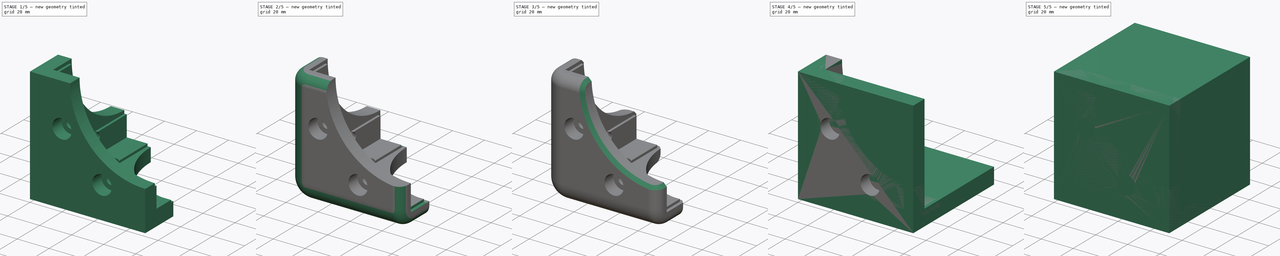
[diagram: build sequence overview — one tinted view per stage of 5, left to right]
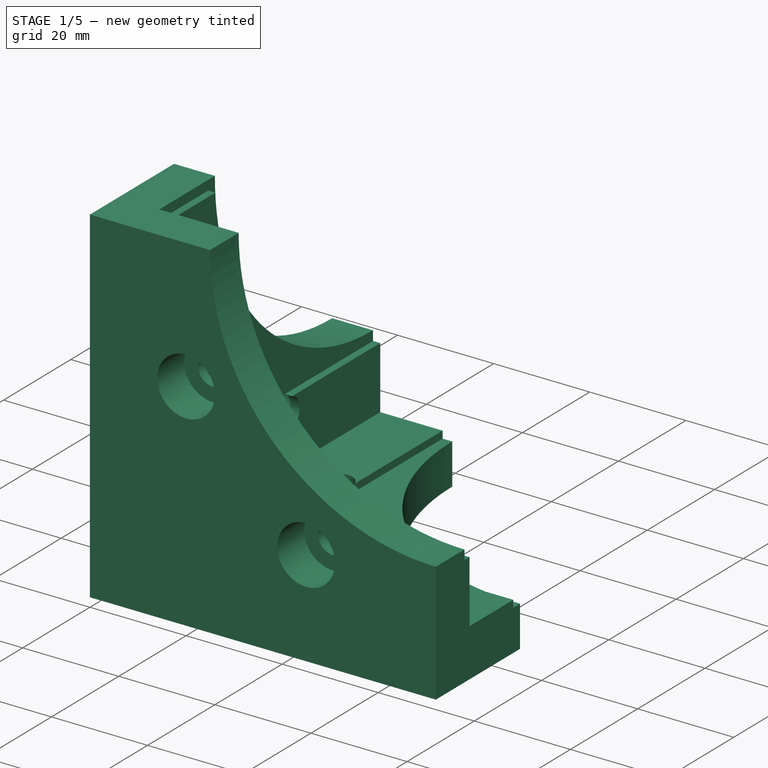
[diagram: stage 1 of 5 — iso view after this stage's code; geometry added in this stage tinted green]
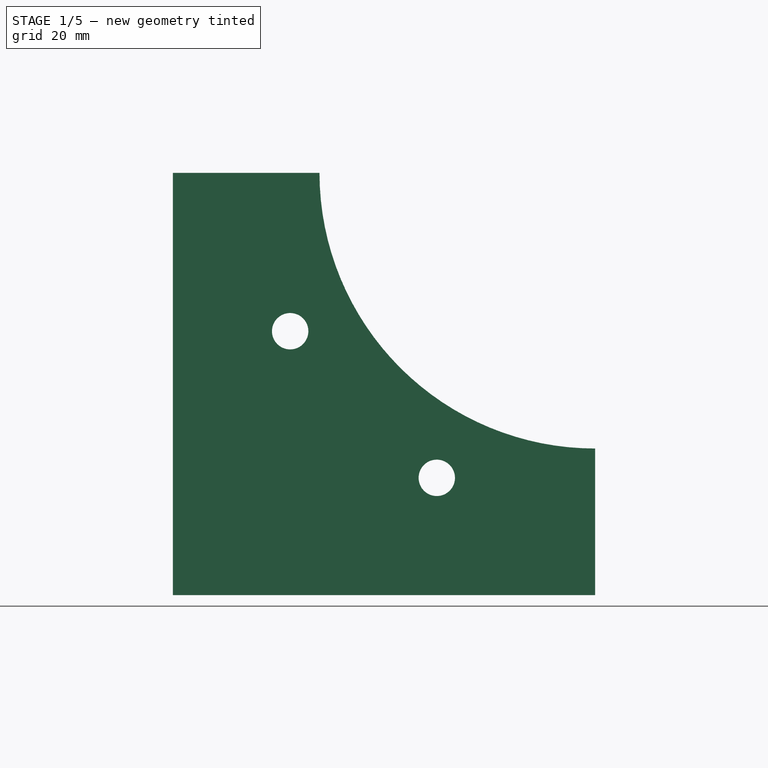
[diagram: stage 1 of 5 — front view after this stage's code; geometry added in this stage tinted green]
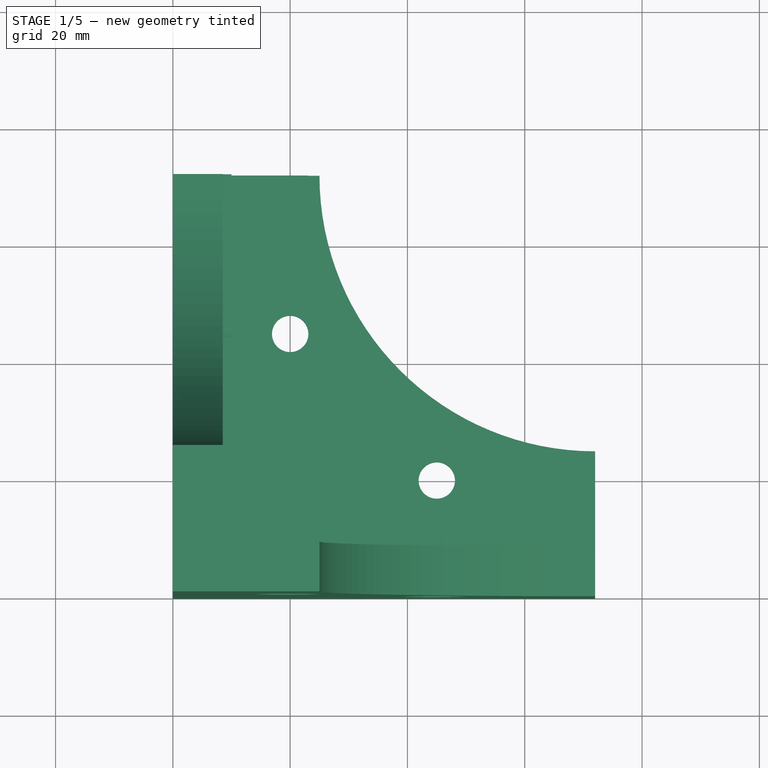
[diagram: stage 1 of 5 — top view after this stage's code; geometry added in this stage tinted green]
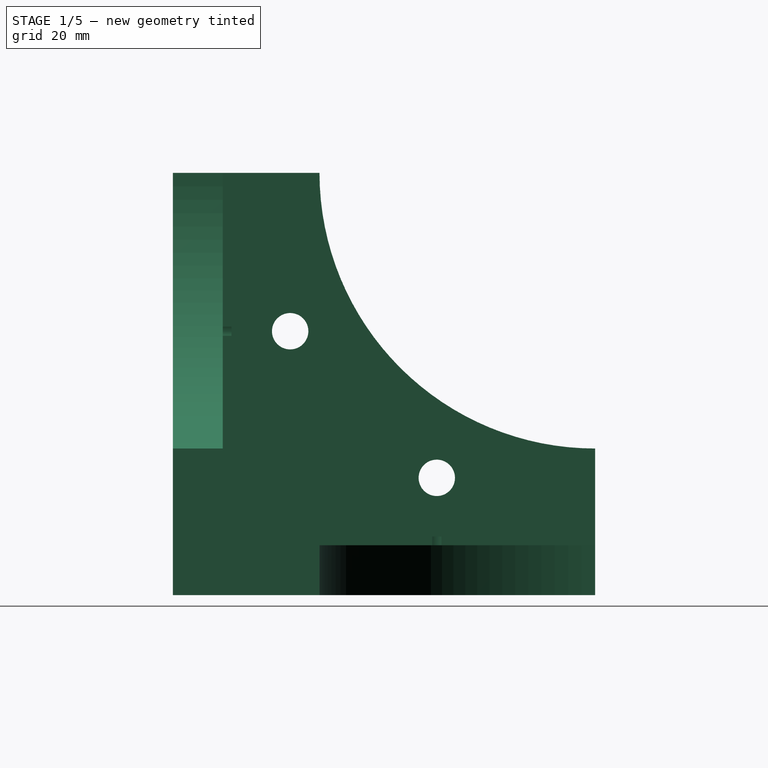
[diagram: stage 1 of 5 — right view after this stage's code; geometry added in this stage tinted green]
FCSTD DOCUMENT  (FreeCAD 0.17R9796 (Git))
Label: shell_3dcorner8g
License: CC-BY 3.0
LicenseURL: http://creativecommons.org/licenses/by/3.0/
objects: Sketcher::SketchObject×16, PartDesign::Pocket×16, PartDesign::Fillet×4, PartDesign::Chamfer×3, Part::Box×1
note: 56 computed .brp shape members not serialized (recipe doc carries the construction recipe); baked Part::Feature solids carry a one-line shape summary decoded from their .brp

FEATURE [Sketcher::SketchObject] Sketch009
  MapMode = 5
  Placement = pos=(0,0,0) rot=(1,0,0;3.14159rad)
  sketch-geometry (1):
    g0: Circle CenterX=72 CenterY=-72 CenterZ=0 NormalX=0 NormalY=0 NormalZ=1 Radius=47
  constraints (3):
    c: DistanceY(g-1,g0) = -72
    c: DistanceX(g-1,g0) = 72
    c: Radius(g0) = 47
FEATURE [PartDesign::Pocket] Pocket009
  Length = 10
  Type = 0
FEATURE [Sketcher::SketchObject] Sketch010
  MapMode = 5
  Placement = pos=(0,10,0) rot=(0,0.707107,0.707107;3.14159rad)
  Support = -> [Pocket009]
  sketch-geometry (4):
    g0: LineSegment StartX=-72 StartY=72 StartZ=0 EndX=-23 EndY=72 EndZ=0
    g1: LineSegment StartX=-23 StartY=72 StartZ=0 EndX=-23 EndY=23 EndZ=0
    g2: LineSegment StartX=-23 StartY=23 StartZ=0 EndX=-72 EndY=23 EndZ=0
    g3: LineSegment StartX=-72 StartY=23 StartZ=0 EndX=-72 EndY=72 EndZ=0
  constraints (12):
    c: Coincident(g0,g1)
    c: Coincident(g1,g2)
    c: Coincident(g2,g3)
    c: Coincident(g3,g0)
    c: Horizontal(g0)
    c: Horizontal(g2)
    c: Vertical(g1)
    c: Vertical(g3)
    c: DistanceY(g-1,g0) = 72
    c: DistanceX(g-1,g0) = -72
    c: DistanceX(g-1,g1) = -23
    c: DistanceY(g-1,g1) = 23
FEATURE [PartDesign::Pocket] Pocket010
  Length = 3
  Midplane = true
  Profile = -> Sketch010
  Type = 0
FEATURE [Sketcher::SketchObject] Sketch011
  MapMode = 5
  Placement = pos=(0,0,72) rot=(0,0,1;0rad)
  Support = -> [Pocket010]
  sketch-geometry (6):
    g0: LineSegment StartX=8.5 StartY=25 StartZ=0 EndX=10 EndY=25 EndZ=0
    g1: LineSegment StartX=10 StartY=25 StartZ=0 EndX=10 EndY=10 EndZ=0
    g2: LineSegment StartX=10 StartY=10 StartZ=0 EndX=25 EndY=10 EndZ=0
    g3: LineSegment StartX=25 StartY=10 StartZ=0 EndX=25 EndY=8.5 EndZ=0
    g4: LineSegment StartX=25 StartY=8.5 StartZ=0 EndX=8.5 EndY=8.5 EndZ=0
    g5: LineSegment StartX=8.5 StartY=8.5 StartZ=0 EndX=8.5 EndY=25 EndZ=0
  constraints (18):
    c: Coincident(g0,g1)
    c: Coincident(g1,g2)
    c: Coincident(g2,g3)
    c: Coincident(g3,g4)
    c: Coincident(g4,g5)
    c: Coincident(g5,g0)
    c: DistanceY(g-1,g1) = 10
    c: DistanceX(g-1,g1) = 10
    c: DistanceX(g-1,g0) = 10
    c: DistanceY(g-1,g2) = 10
    c: DistanceX(g-1,g2) = 25
    c: DistanceX(g-1,g3) = 25
    c: DistanceY(g-1,g0) = 25
    c: DistanceY(g-1,g0) = 25
    c: DistanceY(g-1,g4) = 8.5
    c: DistanceY(g-1,g3) = 8.5
    c: DistanceX(g-1,g4) = 8.5
    c: DistanceX(g-1,g0) = 8.5
FEATURE [PartDesign::Pocket] Pocket011
  Length = 2
  Profile = -> Sketch011
  Type = 0
FEATURE [Sketcher::SketchObject] Sketch012
  MapMode = 5
  Placement = pos=(0,0,10) rot=(0,0,1;0rad)
  Support = -> [Pocket011]
  sketch-geometry (4):
    g0: LineSegment StartX=23 StartY=72 StartZ=0 EndX=72 EndY=72 EndZ=0
    g1: LineSegment StartX=72 StartY=72 StartZ=0 EndX=72 EndY=23 EndZ=0
    g2: LineSegment StartX=72 StartY=23 StartZ=0 EndX=23 EndY=23 EndZ=0
    g3: LineSegment StartX=23 StartY=23 StartZ=0 EndX=23 EndY=72 EndZ=0
  constraints (12):
    c: Coincident(g0,g1)
    c: Coincident(g1,g2)
    c: Coincident(g2,g3)
    c: Coincident(g3,g0)
    c: Horizontal(g0)
    c: Horizontal(g2)
    c: Vertical(g1)
    c: Vertical(g3)
    c: DistanceY(g-1,g2) = 23
    c: DistanceX(g-1,g2) = 23
    c: DistanceY(g-1,g0) = 72
    c: DistanceX(g-1,g0) = 72
FEATURE [PartDesign::Pocket] Pocket012
  Length = 1.5
  Profile = -> Sketch012
  Type = 0
FEATURE [Sketcher::SketchObject] Sketch013
  MapMode = 5
  Placement = pos=(10,0,0) rot=(0.57735,0.57735,0.57735;2.0944rad)
  Support = -> [Pocket012]
  sketch-geometry (4):
    g0: LineSegment StartX=23 StartY=72 StartZ=0 EndX=72 EndY=72 EndZ=0
    g1: LineSegment StartX=72 StartY=72 StartZ=0 EndX=72 EndY=23 EndZ=0
    g2: LineSegment StartX=72 StartY=23 StartZ=0 EndX=23 EndY=23 EndZ=0
    g3: LineSegment StartX=23 StartY=23 StartZ=0 EndX=23 EndY=72 EndZ=0
  constraints (12):
    c: Coincident(g0,g1)
    c: Coincident(g1,g2)
    c: Coincident(g2,g3)
    c: Coincident(g3,g0)
    c: Horizontal(g0)
    c: Horizontal(g2)
    c: Vertical(g1)
    c: Vertical(g3)
    c: DistanceY(g-1,g2) = 23
    c: DistanceX(g-1,g2) = 23
    c: DistanceY(g-1,g0) = 72
    c: DistanceX(g-1,g0) = 72
FEATURE [PartDesign::Pocket] Pocket013
  Length = 1.5
  Profile = -> Sketch013
  Type = 0
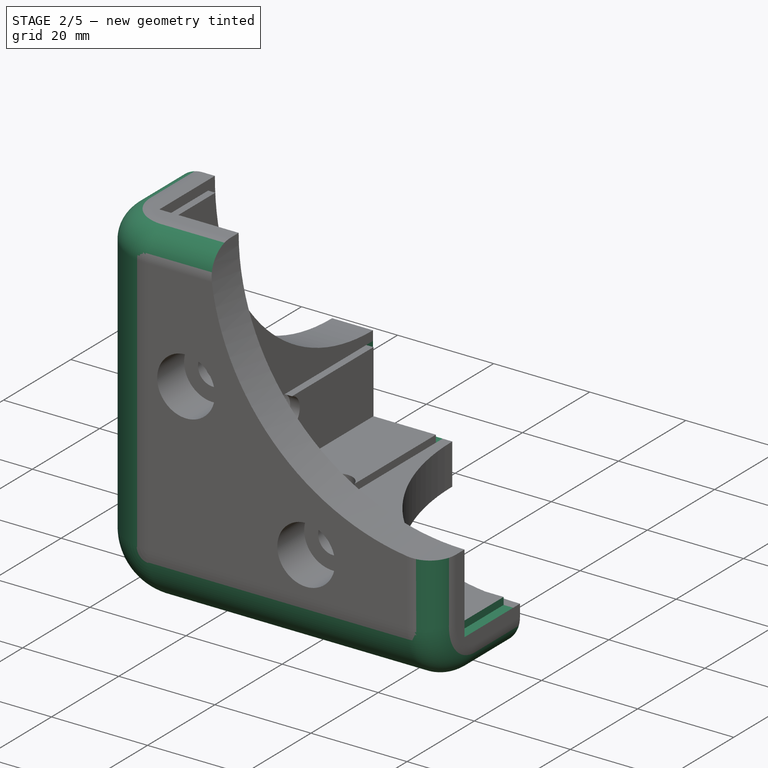
[diagram: stage 2 of 5 — iso view after this stage's code; geometry added in this stage tinted green]
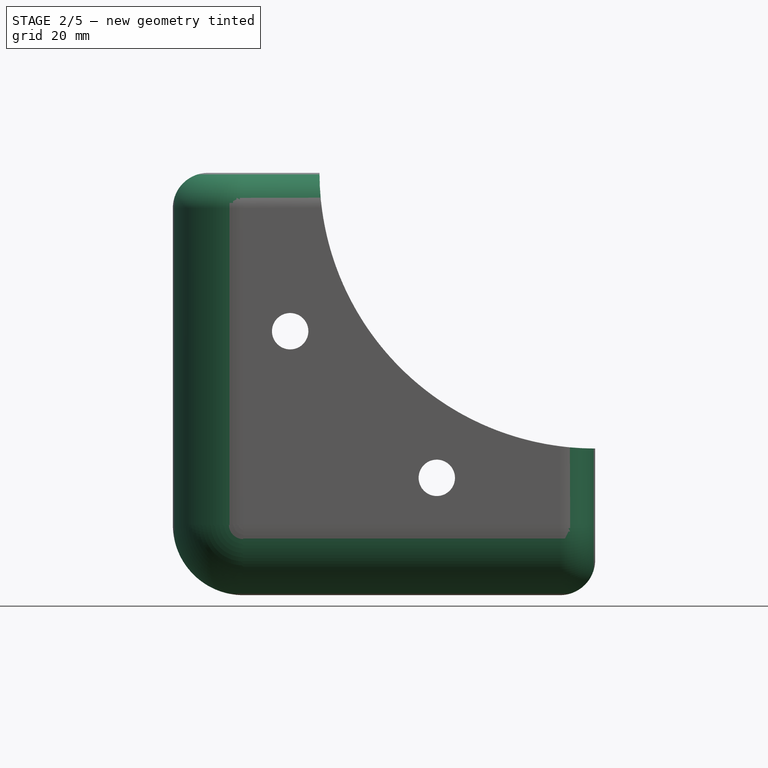
[diagram: stage 2 of 5 — front view after this stage's code; geometry added in this stage tinted green]
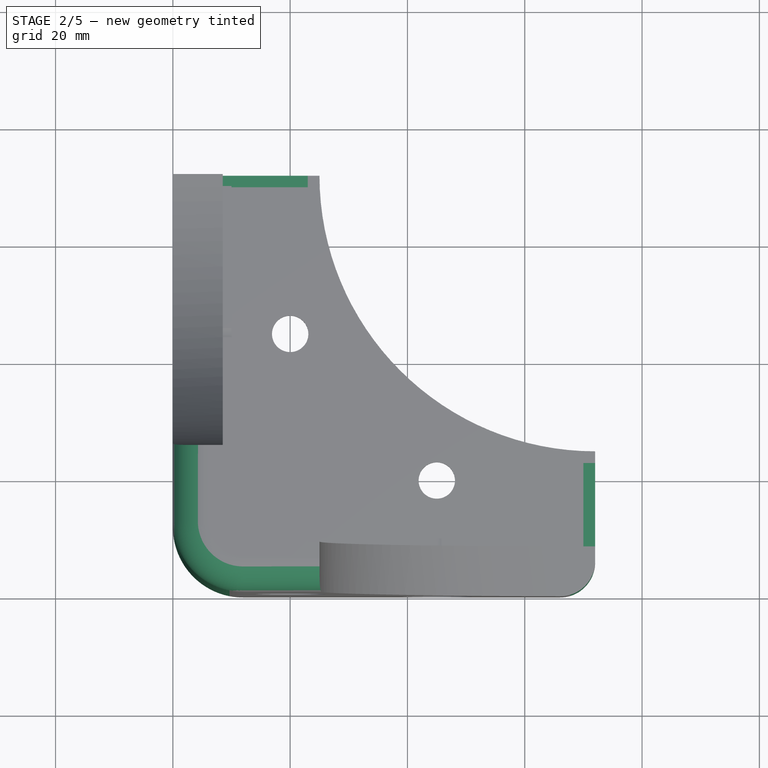
[diagram: stage 2 of 5 — top view after this stage's code; geometry added in this stage tinted green]
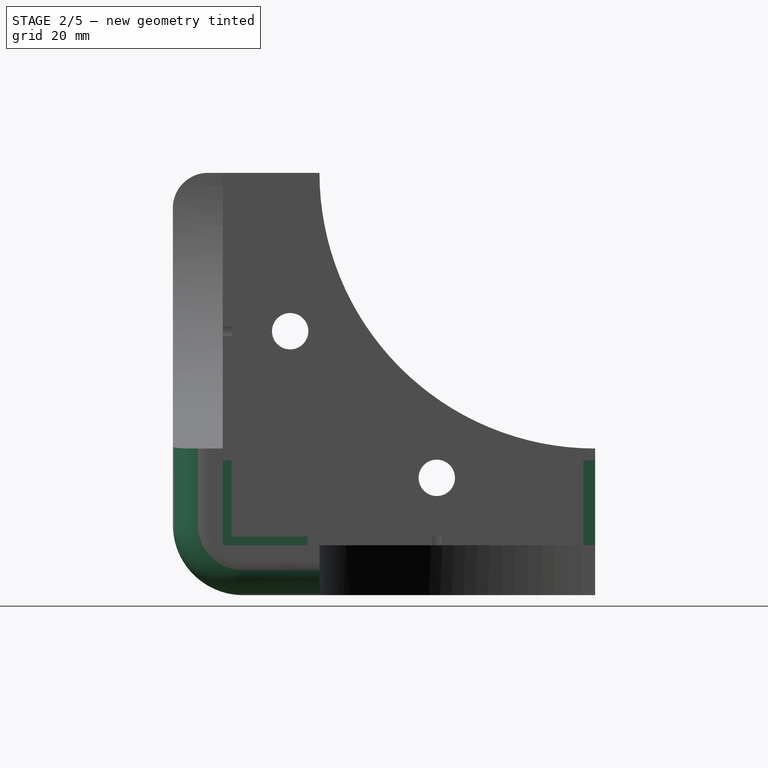
[diagram: stage 2 of 5 — right view after this stage's code; geometry added in this stage tinted green]
FEATURE [Sketcher::SketchObject] Sketch014
  MapMode = 5
  Placement = pos=(72,0,0) rot=(0.57735,0.57735,0.57735;2.0944rad)
  Support = -> [Pocket013]
  sketch-geometry (6):
    g0: LineSegment StartX=8.5 StartY=25 StartZ=0 EndX=10 EndY=25 EndZ=0
    g1: LineSegment StartX=10 StartY=25 StartZ=0 EndX=10 EndY=10 EndZ=0
    g2: LineSegment StartX=10 StartY=10 StartZ=0 EndX=25 EndY=10 EndZ=0
    g3: LineSegment StartX=25 StartY=10 StartZ=0 EndX=25 EndY=8.5 EndZ=0
    g4: LineSegment StartX=25 StartY=8.5 StartZ=0 EndX=8.5 EndY=8.5 EndZ=0
    g5: LineSegment StartX=8.5 StartY=8.5 StartZ=0 EndX=8.5 EndY=25 EndZ=0
  constraints (18):
    c: Coincident(g0,g1)
    c: Coincident(g1,g2)
    c: Coincident(g2,g3)
    c: Coincident(g3,g4)
    c: Coincident(g4,g5)
    c: Coincident(g5,g0)
    c: DistanceY(g-1,g1) = 10
    c: DistanceY(g-1,g2) = 10
    c: DistanceX(g-1,g1) = 10
    c: DistanceX(g-1,g0) = 10
    c: DistanceX(g-1,g0) = 8.5
    c: DistanceX(g-1,g4) = 8.5
    c: DistanceY(g-1,g4) = 8.5
    c: DistanceY(g-1,g3) = 8.5
    c: DistanceX(g-1,g3) = 25
    c: DistanceX(g-1,g2) = 25
    c: DistanceY(g-1,g0) = 25
    c: DistanceY(g-1,g0) = 25
FEATURE [PartDesign::Pocket] Pocket014
  Length = 2
  Profile = -> Sketch014
  Type = 0
FEATURE [Sketcher::SketchObject] Sketch015
  MapMode = 5
  Placement = pos=(0,72,0) rot=(0,0.707107,0.707107;3.14159rad)
  Support = -> [Pocket014]
  sketch-geometry (6):
    g0: LineSegment StartX=-10 StartY=25 StartZ=0 EndX=-8.5 EndY=25 EndZ=0
    g1: LineSegment StartX=-8.5 StartY=25 StartZ=0 EndX=-8.5 EndY=8.5 EndZ=0
    g2: LineSegment StartX=-8.5 StartY=8.5 StartZ=0 EndX=-25 EndY=8.5 EndZ=0
    g3: LineSegment StartX=-25 StartY=8.5 StartZ=0 EndX=-25 EndY=10 EndZ=0
    g4: LineSegment StartX=-25 StartY=10 StartZ=0 EndX=-10 EndY=10 EndZ=0
    g5: LineSegment StartX=-10 StartY=10 StartZ=0 EndX=-10 EndY=25 EndZ=0
  constraints (18):
    c: Coincident(g0,g1)
    c: Coincident(g1,g2)
    c: Coincident(g2,g3)
    c: Coincident(g3,g4)
    c: Coincident(g4,g5)
    c: Coincident(g5,g0)
    c: DistanceY(g-1,g4) = 10
    c: DistanceX(g-1,g4) = -10
    c: DistanceX(g-1,g0) = -10
    c: DistanceY(g-1,g3) = 10
    c: DistanceY(g-1,g1) = 8.5
    c: DistanceX(g-1,g1) = -8.5
    c: DistanceX(g-1,g0) = -8.5
    c: DistanceY(g-1,g2) = 8.5
    c: DistanceY(g-1,g0) = 25
    c: DistanceY(g-1,g0) = 25
    c: DistanceX(g-1,g2) = -25
    c: DistanceX(g-1,g3) = -25
FEATURE [PartDesign::Pocket] Pocket015
  Length = 2
  Profile = -> Sketch015
  Type = 0
FEATURE [PartDesign::Fillet] Fillet
  Base = -> Pocket015 [Edge4,Edge5,Edge25]
  Radius = 12
FEATURE [PartDesign::Fillet] Fillet001
  Base = -> Fillet [Edge75,Edge33,Edge61]
  Radius = 6
FEATURE [PartDesign::Fillet] Fillet002
  Base = -> Fillet001 [Edge5,Edge16,Edge20]
  Radius = 6
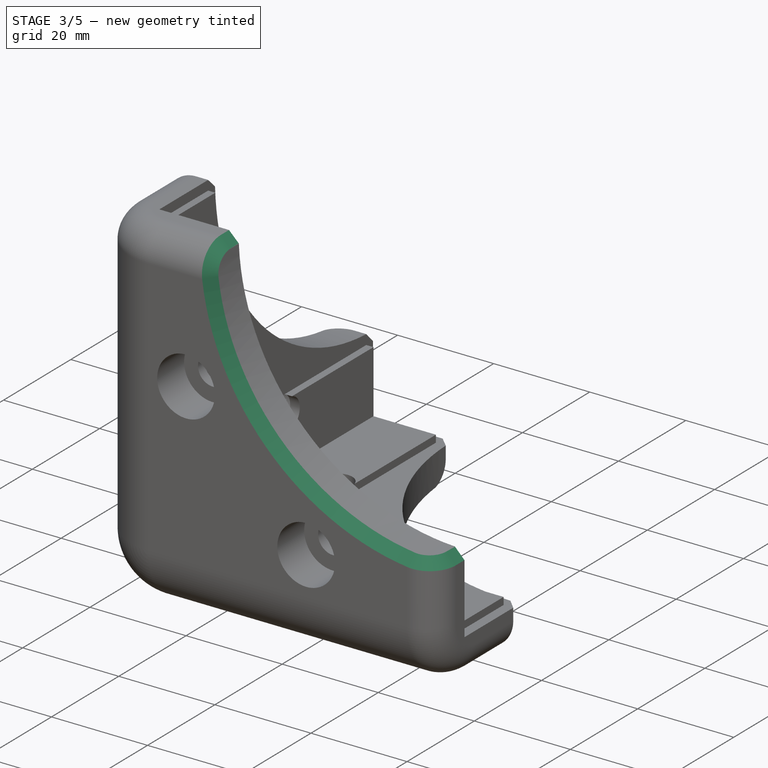
[diagram: stage 3 of 5 — iso view after this stage's code; geometry added in this stage tinted green]
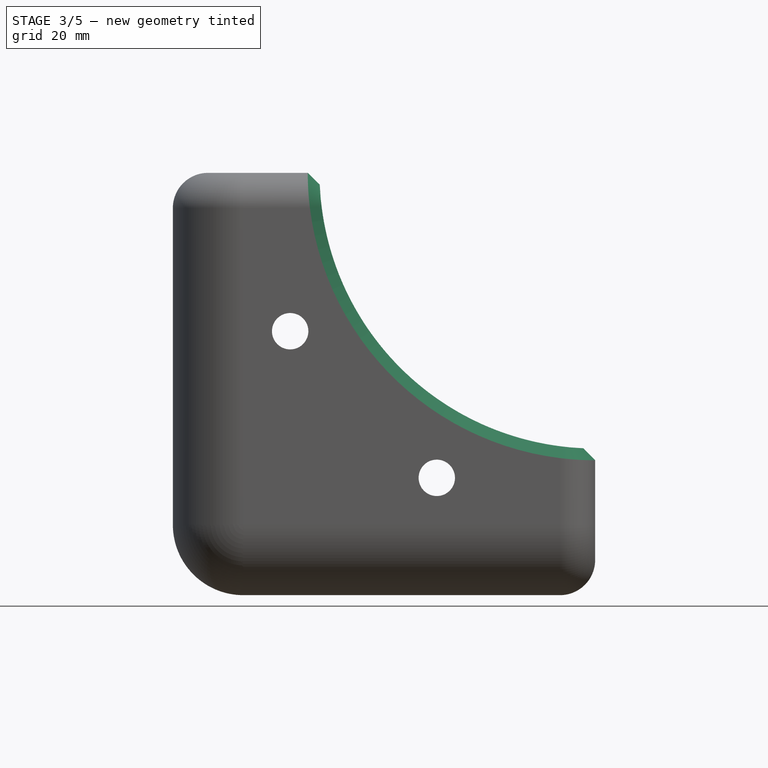
[diagram: stage 3 of 5 — front view after this stage's code; geometry added in this stage tinted green]
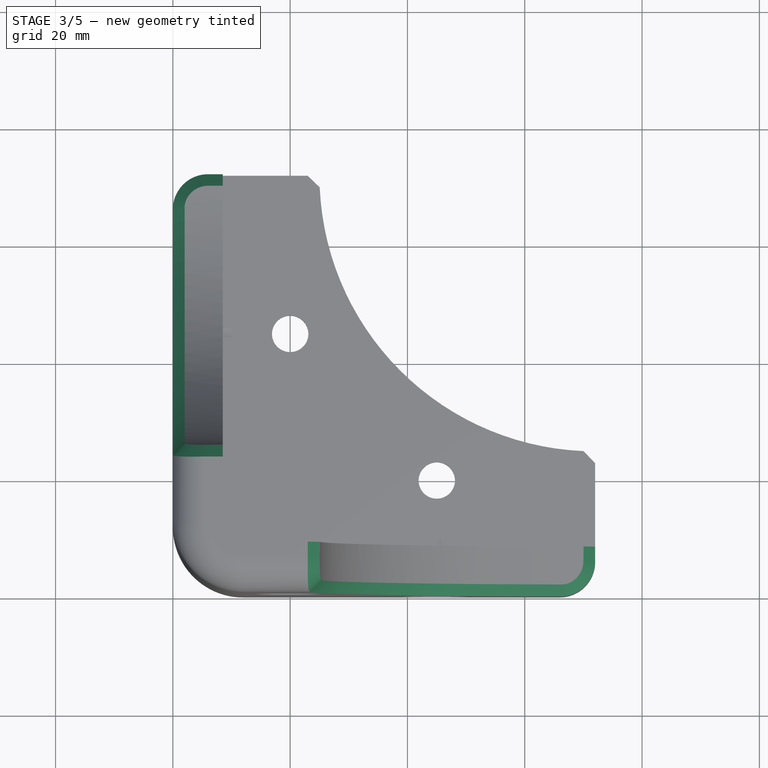
[diagram: stage 3 of 5 — top view after this stage's code; geometry added in this stage tinted green]
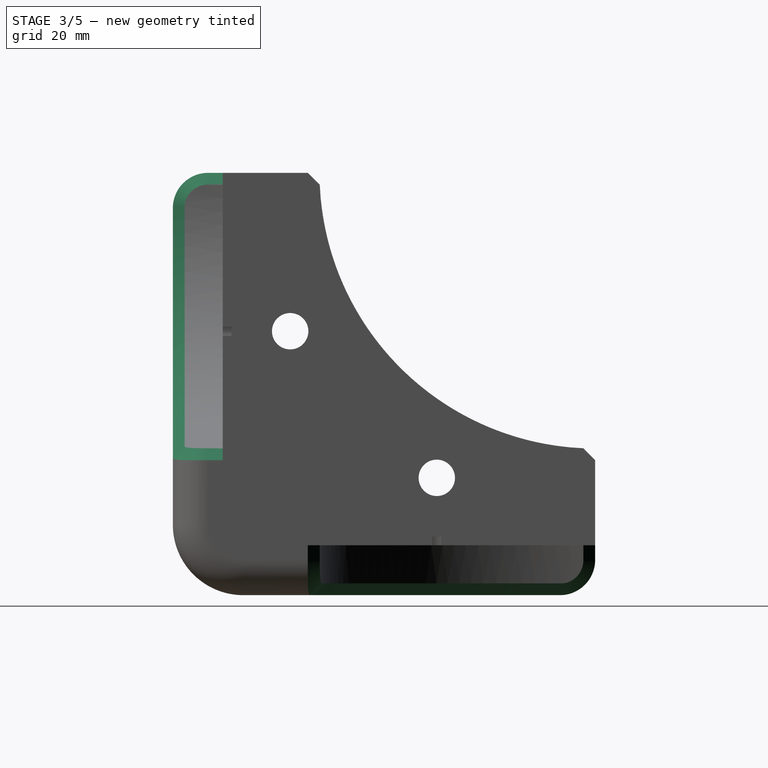
[diagram: stage 3 of 5 — right view after this stage's code; geometry added in this stage tinted green]
FEATURE [PartDesign::Fillet] Fillet003
  Base = -> Fillet002 [Edge34,Edge71,Edge47]
  Radius = 6
FEATURE [PartDesign::Chamfer] Chamfer
  Base = -> Fillet003 [Edge45]
  Size = 2
FEATURE [PartDesign::Chamfer] Chamfer001
  Base = -> Chamfer [Edge58]
  Size = 2
FEATURE [PartDesign::Chamfer] Chamfer002
  Base = -> Chamfer001 [Edge159]
  Size = 2
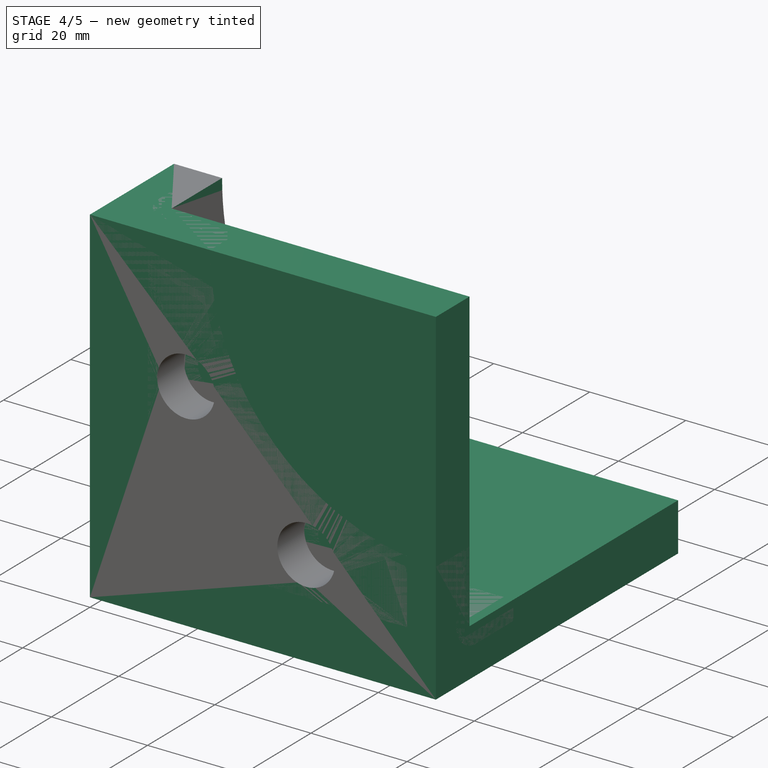
[diagram: stage 4 of 5 — iso view after this stage's code; geometry added in this stage tinted green]
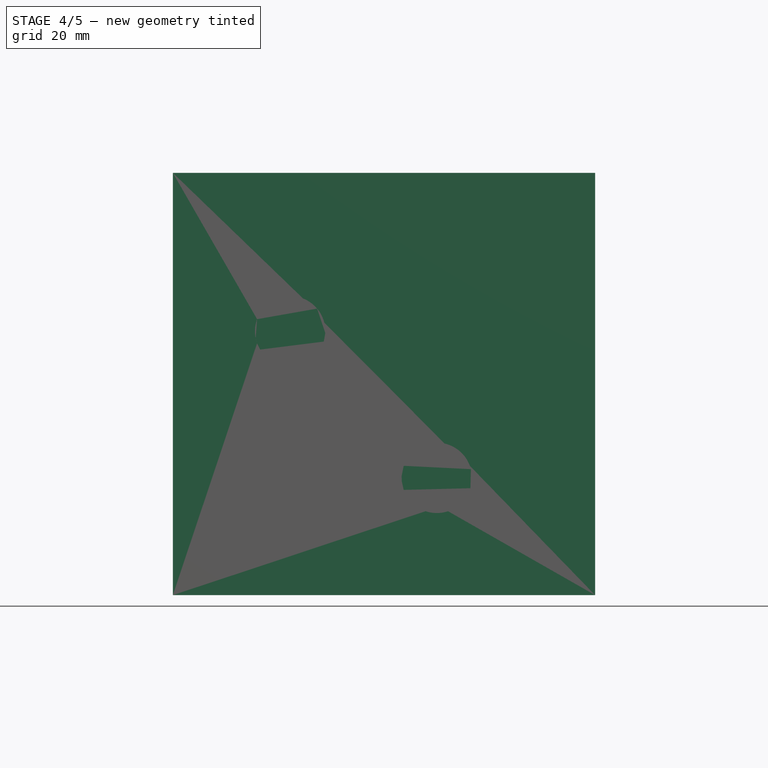
[diagram: stage 4 of 5 — front view after this stage's code; geometry added in this stage tinted green]
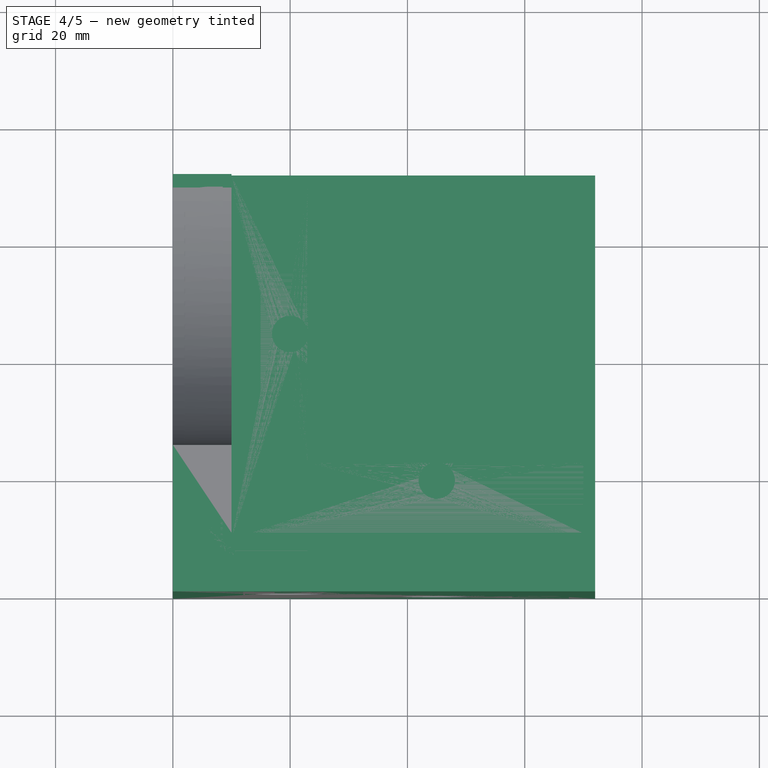
[diagram: stage 4 of 5 — top view after this stage's code; geometry added in this stage tinted green]
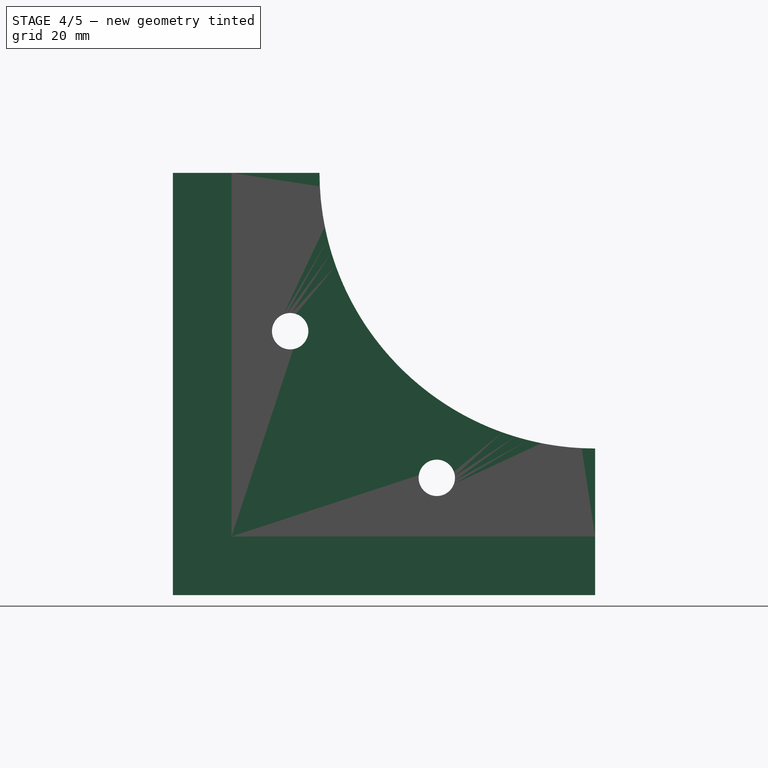
[diagram: stage 4 of 5 — right view after this stage's code; geometry added in this stage tinted green]
FEATURE [Sketcher::SketchObject] Sketch004
  MapMode = 5
  Placement = pos=(0,0,0) rot=(1,0,0;1.5708rad)
  sketch-geometry (2):
    g0: Circle CenterX=45 CenterY=20 CenterZ=0 NormalX=0 NormalY=0 NormalZ=1 Radius=6
    g1: Circle CenterX=20 CenterY=45 CenterZ=0 NormalX=0 NormalY=0 NormalZ=1 Radius=6
  constraints (6):
    c: DistanceX(g-1,g1) = 20
    c: DistanceY(g-1,g1) = 45
    c: DistanceX(g-1,g0) = 45
    c: DistanceY(g-1,g0) = 20
    c: Radius(g1) = 6
    c: Radius(g0) = 6
FEATURE [PartDesign::Pocket] Pocket004
  Length = 8
  Type = 0
FEATURE [Sketcher::SketchObject] Sketch005
  MapMode = 5
  Placement = pos=(0,8,0) rot=(1,0,0;1.5708rad)
  sketch-geometry (2):
    g0: Circle CenterX=20 CenterY=45 CenterZ=0 NormalX=0 NormalY=0 NormalZ=1 Radius=3.1
    g1: Circle CenterX=45 CenterY=20 CenterZ=0 NormalX=0 NormalY=0 NormalZ=1 Radius=3.1
  constraints (6):
    c: DistanceX(g-1,g1) = 45
    c: DistanceY(g-1,g1) = 20
    c: DistanceX(g-1,g0) = 20
    c: DistanceY(g-1,g0) = 45
    c: Radius(g0) = 3.1
    c: Radius(g1) = 3.1
FEATURE [PartDesign::Pocket] Pocket005
  Length = 5
  Type = 0
FEATURE [Sketcher::SketchObject] Sketch006
  MapMode = 5
  Placement = pos=(0,0,0) rot=(1,0,0;1.5708rad)
  sketch-geometry (1):
    g0: Circle CenterX=72 CenterY=72 CenterZ=0 NormalX=0 NormalY=0 NormalZ=1 Radius=47
  constraints (3):
    c: DistanceY(g-1,g0) = 72
    c: DistanceX(g-1,g0) = 72
    c: Radius(g0) = 47
FEATURE [PartDesign::Pocket] Pocket006
  Length = 10
  Type = 0
FEATURE [Sketcher::SketchObject] Sketch007
  MapMode = 5
  Placement = pos=(0,0,0) rot=(1,0,0;3.14159rad)
  sketch-geometry (2):
    g0: Circle CenterX=45 CenterY=-20 CenterZ=0 NormalX=0 NormalY=0 NormalZ=1 Radius=6
    g1: Circle CenterX=20 CenterY=-45 CenterZ=0 NormalX=0 NormalY=0 NormalZ=1 Radius=6
  constraints (6):
    c: DistanceX(g-1,g0) = 45
    c: DistanceY(g-1,g0) = -20
    c: DistanceY(g-1,g1) = -45
    c: DistanceX(g-1,g1) = 20
    c: Radius(g0) = 6
    c: Radius(g1) = 6
FEATURE [PartDesign::Pocket] Pocket007
  Length = 8
  Type = 0
FEATURE [Sketcher::SketchObject] Sketch008
  MapMode = 5
  Placement = pos=(0,0,8) rot=(1,0,0;3.14159rad)
  sketch-geometry (2):
    g0: Circle CenterX=45 CenterY=-20 CenterZ=0 NormalX=0 NormalY=0 NormalZ=1 Radius=3.1
    g1: Circle CenterX=20 CenterY=-45 CenterZ=0 NormalX=0 NormalY=0 NormalZ=1 Radius=3.1
  constraints (6):
    c: DistanceY(g-1,g1) = -45
    c: DistanceX(g-1,g1) = 20
    c: DistanceY(g-1,g0) = -20
    c: DistanceX(g-1,g0) = 45
    c: Radius(g0) = 3.1
    c: Radius(g1) = 3.1
FEATURE [PartDesign::Pocket] Pocket008
  Length = 5
  Type = 0
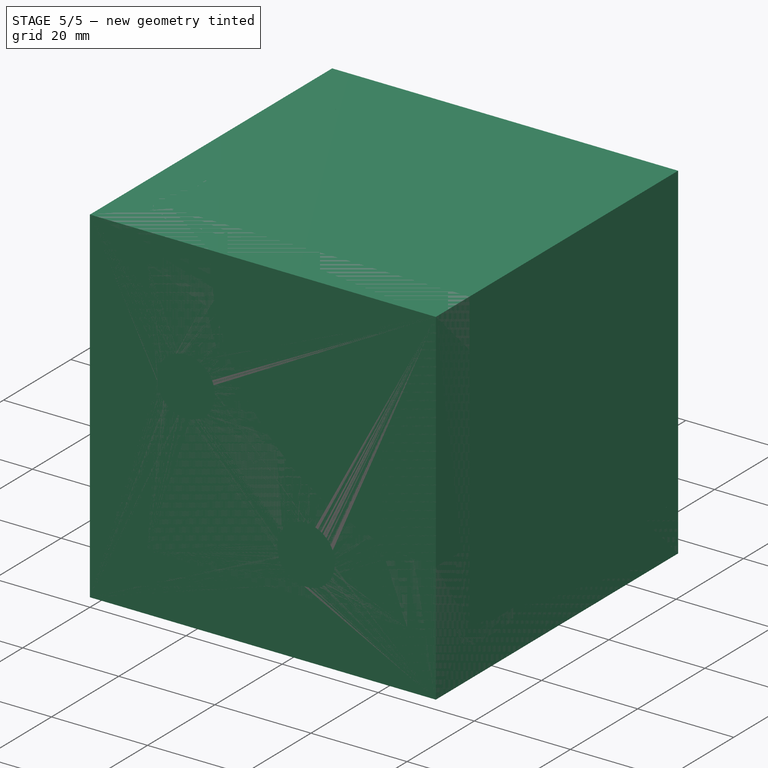
[diagram: stage 5 of 5 — iso view after this stage's code; geometry added in this stage tinted green]
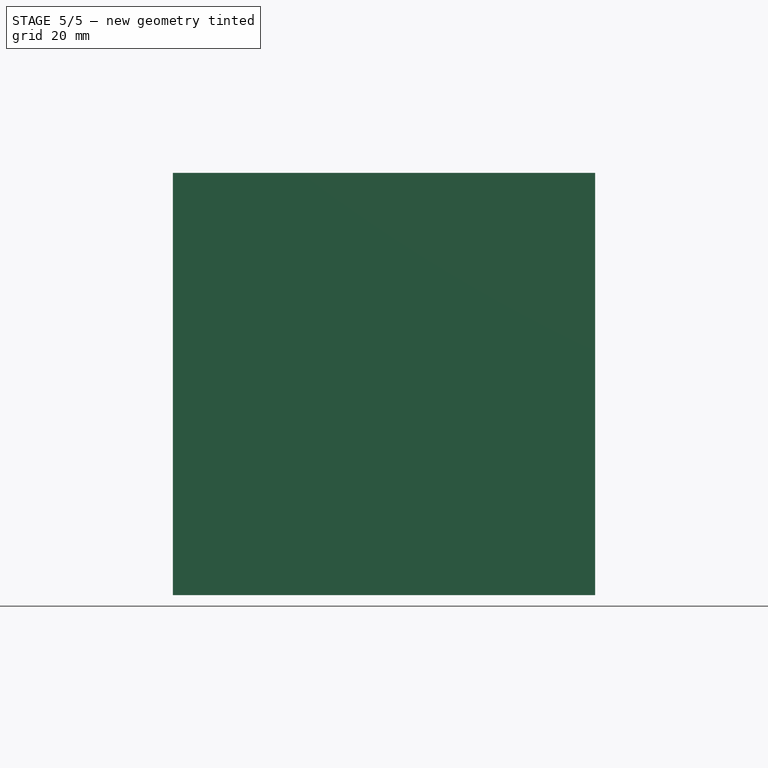
[diagram: stage 5 of 5 — front view after this stage's code; geometry added in this stage tinted green]
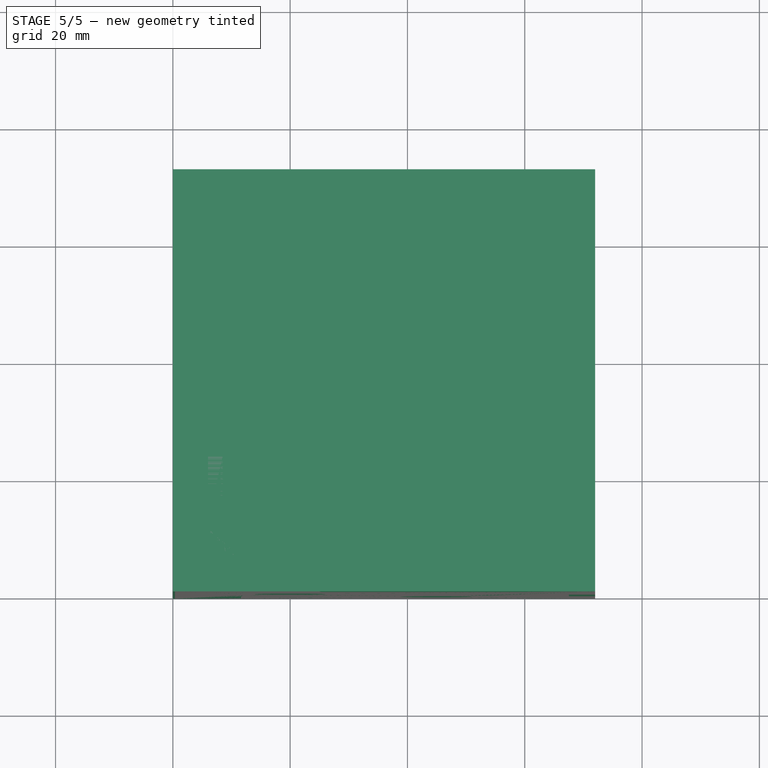
[diagram: stage 5 of 5 — top view after this stage's code; geometry added in this stage tinted green]
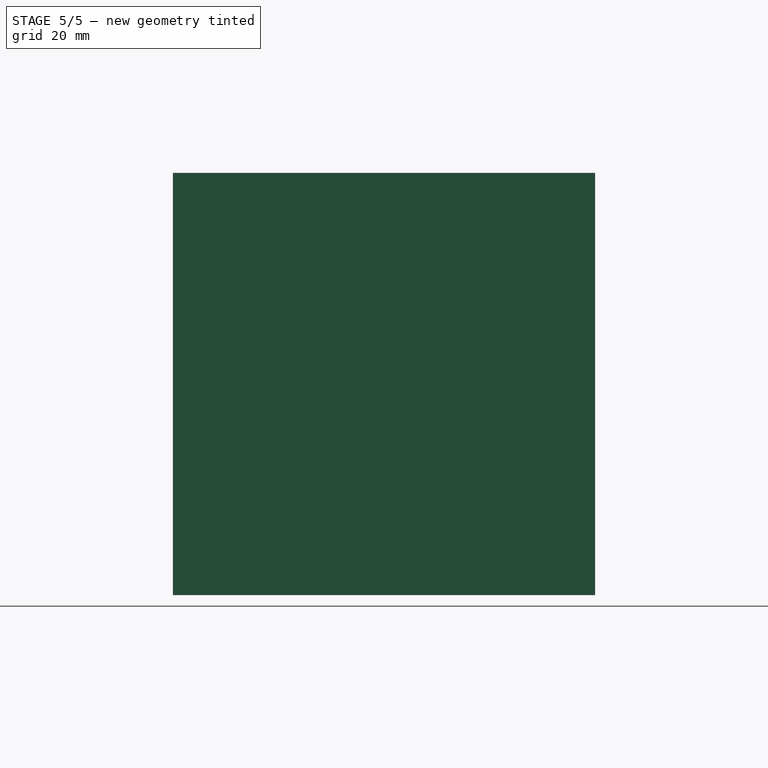
[diagram: stage 5 of 5 — right view after this stage's code; geometry added in this stage tinted green]
FEATURE [Part::Box] Box  label="Cube"
  AttacherType = Attacher::AttachEngine3D
  Height = 72
  Length = 72
  Width = 72
FEATURE [Sketcher::SketchObject] Sketch
  MapMode = 5
  Placement = pos=(0,0,72) rot=(0,0,1;0rad)
  sketch-geometry (4):
    g0: LineSegment StartX=72 StartY=72 StartZ=0 EndX=10 EndY=72 EndZ=0
    g1: LineSegment StartX=10 StartY=72 StartZ=0 EndX=10 EndY=10 EndZ=0
    g2: LineSegment StartX=10 StartY=10 StartZ=0 EndX=72 EndY=10 EndZ=0
    g3: LineSegment StartX=72 StartY=10 StartZ=0 EndX=72 EndY=72 EndZ=0
  constraints (12):
    c: Coincident(g0,g1)
    c: Coincident(g1,g2)
    c: Coincident(g2,g3)
    c: Coincident(g3,g0)
    c: Horizontal(g0)
    c: Horizontal(g2)
    c: Vertical(g1)
    c: Vertical(g3)
    c: DistanceX(g-1,g1) = 10
    c: DistanceY(g-1,g1) = 10
    c: DistanceY(g-1,g0) = 72
    c: DistanceX(g-1,g0) = 72
FEATURE [PartDesign::Pocket] Pocket
  Length = 62
  Type = 0
FEATURE [Sketcher::SketchObject] Sketch001
  MapMode = 5
  Placement = pos=(0,0,0) rot=(0.57735,-0.57735,-0.57735;2.0944rad)
  sketch-geometry (2):
    g0: Circle CenterX=-20 CenterY=45 CenterZ=0 NormalX=0 NormalY=0 NormalZ=1 Radius=6
    g1: Circle CenterX=-45 CenterY=20 CenterZ=0 NormalX=0 NormalY=0 NormalZ=1 Radius=6
  constraints (6):
    c: DistanceY(g-1,g0) = 45
    c: DistanceX(g-1,g0) = -20
    c: Radius(g0) = 6
    c: DistanceY(g-1,g1) = 20
    c: DistanceX(g-1,g1) = -45
    c: Radius(g1) = 6
FEATURE [PartDesign::Pocket] Pocket001
  Length = 8
  Type = 0
FEATURE [Sketcher::SketchObject] Sketch002
  MapMode = 5
  Placement = pos=(8,0,0) rot=(0.57735,-0.57735,-0.57735;2.0944rad)
  sketch-geometry (2):
    g0: Circle CenterX=-20 CenterY=45 CenterZ=0 NormalX=0 NormalY=0 NormalZ=1 Radius=3.1
    g1: Circle CenterX=-45 CenterY=20 CenterZ=0 NormalX=0 NormalY=0 NormalZ=1 Radius=3.1
  constraints (6):
    c: DistanceY(g-1,g0) = 45
    c: DistanceX(g-1,g0) = -20
    c: DistanceX(g-1,g1) = -45
    c: DistanceY(g-1,g1) = 20
    c: Radius(g1) = 3.1
    c: Radius(g0) = 3.1
FEATURE [PartDesign::Pocket] Pocket002
  Length = 5
  Type = 0
FEATURE [Sketcher::SketchObject] Sketch003
  MapMode = 5
  Placement = pos=(0,0,0) rot=(0.57735,-0.57735,-0.57735;2.0944rad)
  sketch-geometry (1):
    g0: Circle CenterX=-72 CenterY=72 CenterZ=0 NormalX=0 NormalY=0 NormalZ=1 Radius=47
  constraints (3):
    c: DistanceY(g-1,g0) = 72
    c: DistanceX(g-1,g0) = -72
    c: Radius(g0) = 47
FEATURE [PartDesign::Pocket] Pocket003
  Length = 10
  Type = 0
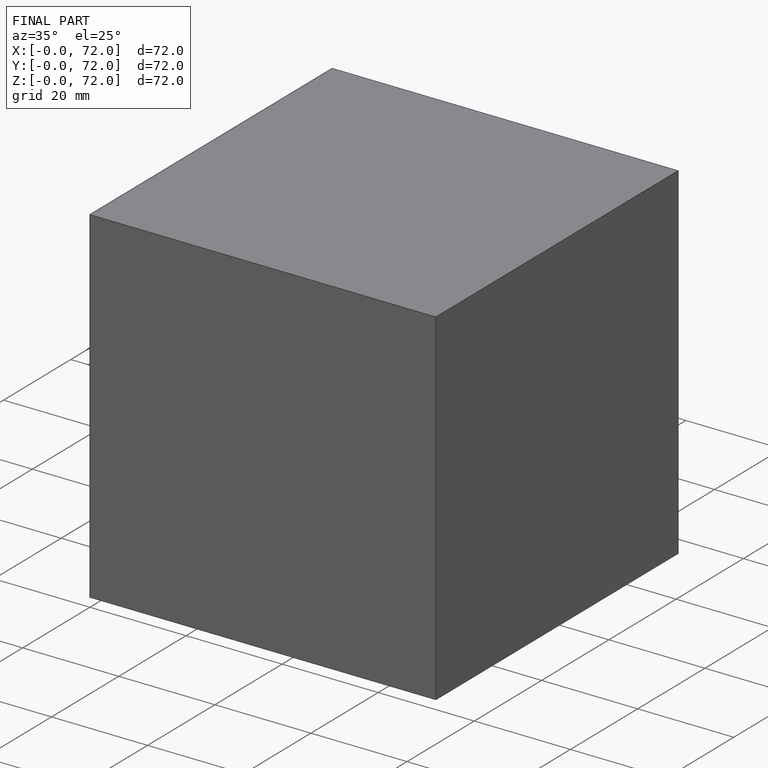
[diagram: finished part — iso view with bounding-box wireframe]
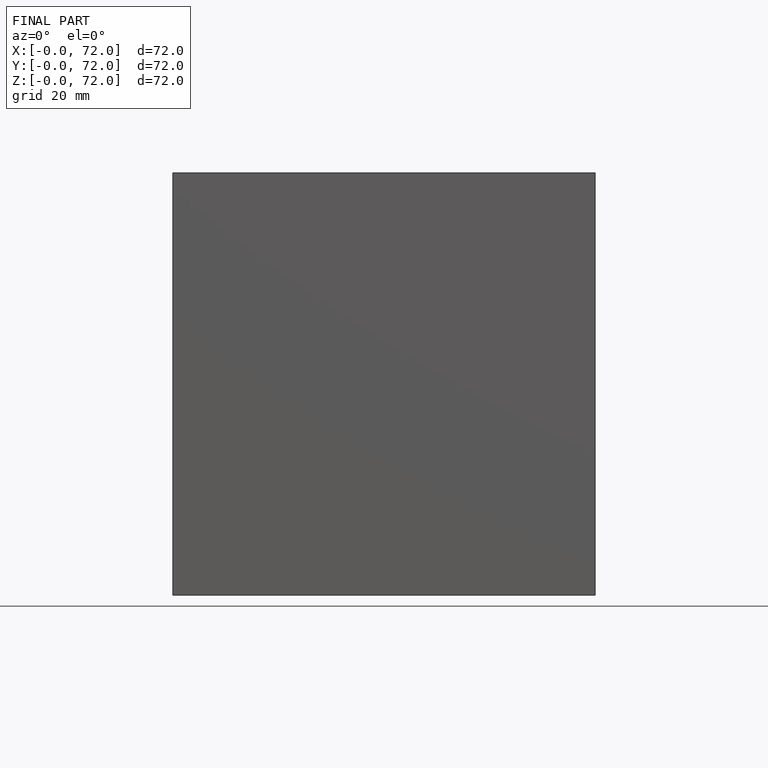
[diagram: finished part — front view with bounding-box wireframe]
